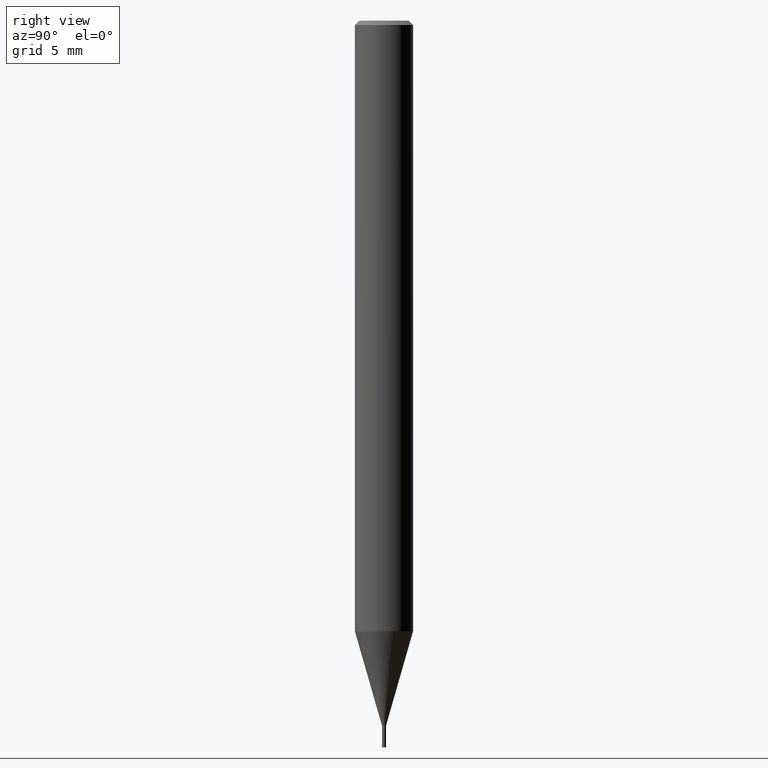
[diagram: clean part render]
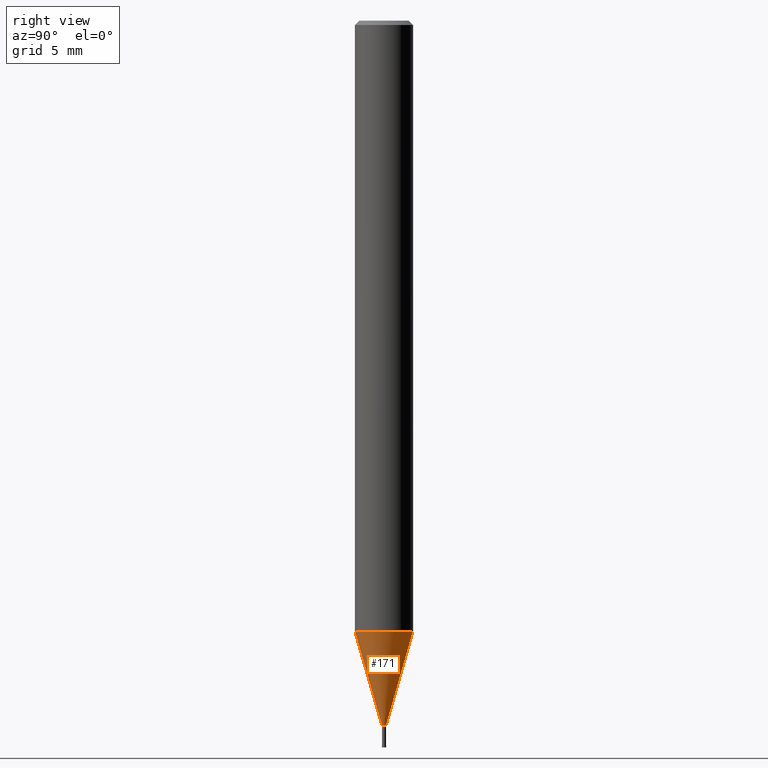
[diagram: same view with one face highlighted and labeled with its STEP entity id]
A machine part, right view. The second image highlights one B-rep face of the part: STEP entity #171.
In plain terms, the highlighted conical surface has half-angle 15.999 deg.
Its self-contained STEP definition (entity closure, byte-faithful):
#157=EDGE_CURVE('',#269,#193,#392,.T.);
#171=ADVANCED_FACE('',(#408),#409,.T.);
#193=VERTEX_POINT('',#436);
#207=EDGE_CURVE('',#273,#323,#451,.T.);
#269=VERTEX_POINT('',#522);
#273=VERTEX_POINT('',#526);
#293=EDGE_CURVE('',#273,#193,#548,.T.);
#323=VERTEX_POINT('',#581);
#347=EDGE_CURVE('',#323,#269,#610,.T.);
#392=LINE('',#656,#657);
#408=FACE_OUTER_BOUND('',#675,.T.);
#409=CONICAL_SURFACE('',#676,1.06995,0.27923596926092);
#436=CARTESIAN_POINT('',(2.44915147732706E-016,-1.99995,-42.003));
#451=LINE('',#727,#728);
#522=CARTESIAN_POINT('',(1.71383659217442E-017,-0.13995,-48.49));
#526=CARTESIAN_POINT('',(0.0,1.99995,-42.003));
#548=CIRCLE('',#851,1.99995);
#581=CARTESIAN_POINT('',(0.0,0.13995,-48.49));
#610=CIRCLE('',#930,0.13995);
#656=CARTESIAN_POINT('',(1.31026756827225E-016,-1.06995,-45.2465));
#657=VECTOR('',#958,1.0);
#675=EDGE_LOOP('',(#974,#975,#976,#977));
#676=AXIS2_PLACEMENT_3D('',#978,#979,#980);
#727=CARTESIAN_POINT('',(-1.31026756827225E-016,1.06995,-45.2465));
#728=VECTOR('',#1040,1.0);
#851=AXIS2_PLACEMENT_3D('',#1170,#1171,#1172);
#930=AXIS2_PLACEMENT_3D('',#1250,#1251,#1252);
#958=DIRECTION('',(3.37527585527933E-017,-0.275621292078393,0.961266301995986));
#974=ORIENTED_EDGE('',*,*,#207,.F.);
#975=ORIENTED_EDGE('',*,*,#293,.T.);
#976=ORIENTED_EDGE('',*,*,#157,.F.);
#977=ORIENTED_EDGE('',*,*,#347,.F.);
#978=CARTESIAN_POINT('',(0.0,0.0,-45.2465));
#979=DIRECTION('',(-0.0,-0.0,1.0));
#980=DIRECTION('',(0.0,1.0,0.0));
#1040=DIRECTION('',(3.37527585527933E-017,-0.275621292078393,-0.961266301995986));
#1170=CARTESIAN_POINT('',(0.0,0.0,-42.003));
#1171=DIRECTION('',(0.0,0.0,-1.0));
#1172=DIRECTION('',(0.0,1.0,0.0));
#1250=CARTESIAN_POINT('',(0.0,0.0,-48.49));
#1251=DIRECTION('',(0.0,0.0,-1.0));
#1252=DIRECTION('',(0.0,1.0,0.0));